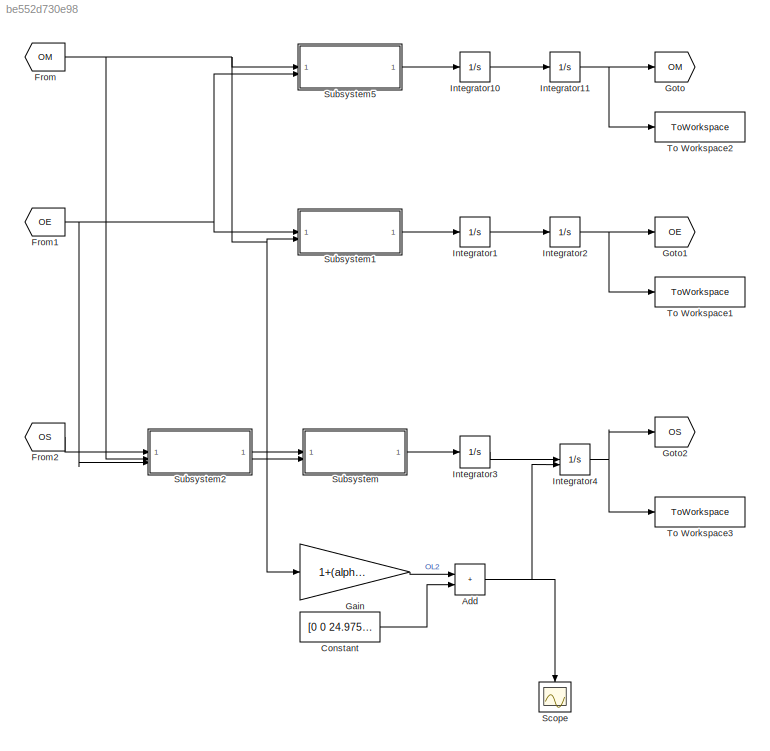
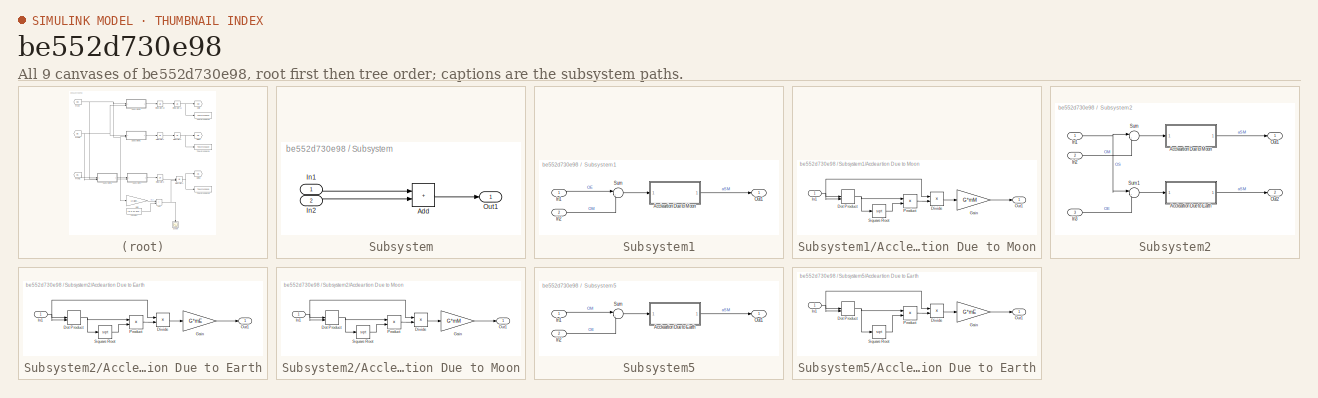
[diagram: thumbnail index - all 9 canvases of the model, root first then tree order]
MODEL slx_be552d730e98
KIND model
CONFIG AbsTol = auto
CONFIG EnableMultiTasking = off
CONFIG FixedStep = 10
CONFIG MaxStep = auto
CONFIG MinStep = auto
CONFIG RelTol = 1e-3
CONFIG SampleTimeConstraint = Unconstrained
CONFIG SolverName = FixedStepAuto
CONFIG StartTime = 0.0
CONFIG StopTime = 5000000
BLOCK [Sum] Add
  IconShape = rectangular
BLOCK [Constant] Constant
  Value = [0 0 24.975e6]
BLOCK [From] From
  GotoTag = OM
BLOCK [From] From1
  GotoTag = OE
BLOCK [From] From2
  GotoTag = OS
BLOCK [Gain] Gain
  Gain = 1+(alpha/3)^(1/3)
BLOCK [Goto] Goto
  GotoTag = OM
BLOCK [Goto] Goto1
  GotoTag = OE
BLOCK [Goto] Goto2
  GotoTag = OS
BLOCK [Integrator] Integrator1
  InitialCondition = velE
BLOCK [Integrator] Integrator10
  InitialCondition = velM
BLOCK [Integrator] Integrator11
  InitialCondition = posM
BLOCK [Integrator] Integrator2
  InitialCondition = posE
BLOCK [Integrator] Integrator3
  InitialCondition = velS
BLOCK [Integrator] Integrator4
  InitialCondition = posS
  InitialConditionSource = external
BLOCK [Scope] Scope
  Floating = off
  NameLocation = left
  NumInputPorts = 1
  ScopeSpecificationString = Simulink.scopes.TimeScopeBlockCfg('CurrentConfiguration', extmgr.ConfigurationSet(extmgr.Configuration('Core','General UI',true),extmgr.Configuration('Core','Source UI',true),extmgr.Configuration('Sources','WiredSimulink',true),extmgr.Configuration('Visuals','Time Domain',true,'SerializedDisplays',{struct('MinYLimReal','-565600906.41951','MaxYLimReal','565434810.33087','YLabelReal','','MinYLimMag'...<+1835ch>
BLOCK [SubSystem] Subsystem
BLOCK [Sum] Subsystem/Add
  IconShape = rectangular
BLOCK [Inport] Subsystem/In1
BLOCK [Inport] Subsystem/In2
  Port = 2
BLOCK [Outport] Subsystem/Out1
BLOCK [SubSystem] Subsystem1
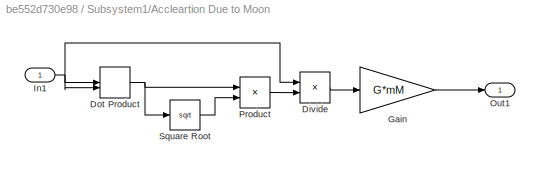
BLOCK [SubSystem] Subsystem1/Accleartion Due to Moon
BLOCK [Product] Subsystem1/Accleartion Due to Moon/Divide
  Inputs = */
BLOCK [DotProduct] Subsystem1/Accleartion Due to Moon/Dot Product
  OutDataTypeStr = Inherit: Inherit via internal rule
BLOCK [Gain] Subsystem1/Accleartion Due to Moon/Gain
  Gain = G*mM
BLOCK [Inport] Subsystem1/Accleartion Due to Moon/In1
BLOCK [Outport] Subsystem1/Accleartion Due to Moon/Out1
BLOCK [Product] Subsystem1/Accleartion Due to Moon/Product
BLOCK [Sqrt] Subsystem1/Accleartion Due to Moon/Square Root
BLOCK [Inport] Subsystem1/In1
BLOCK [Inport] Subsystem1/In2
  Port = 2
BLOCK [Outport] Subsystem1/Out1
BLOCK [Sum] Subsystem1/Sum
  Inputs = |-+
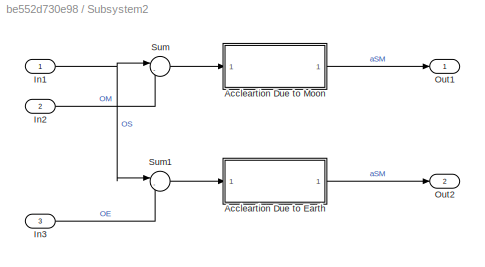
BLOCK [SubSystem] Subsystem2
BLOCK [SubSystem] Subsystem2/Accleartion Due to Earth
BLOCK [Product] Subsystem2/Accleartion Due to Earth/Divide
  Inputs = */
BLOCK [DotProduct] Subsystem2/Accleartion Due to Earth/Dot Product
  OutDataTypeStr = Inherit: Inherit via internal rule
BLOCK [Gain] Subsystem2/Accleartion Due to Earth/Gain
  Gain = G*mE
BLOCK [Inport] Subsystem2/Accleartion Due to Earth/In1
BLOCK [Outport] Subsystem2/Accleartion Due to Earth/Out1
BLOCK [Product] Subsystem2/Accleartion Due to Earth/Product
BLOCK [Sqrt] Subsystem2/Accleartion Due to Earth/Square Root
BLOCK [SubSystem] Subsystem2/Accleartion Due to Moon
BLOCK [Product] Subsystem2/Accleartion Due to Moon/Divide
  Inputs = */
BLOCK [DotProduct] Subsystem2/Accleartion Due to Moon/Dot Product
  OutDataTypeStr = Inherit: Inherit via internal rule
BLOCK [Gain] Subsystem2/Accleartion Due to Moon/Gain
  Gain = G*mM
BLOCK [Inport] Subsystem2/Accleartion Due to Moon/In1
BLOCK [Outport] Subsystem2/Accleartion Due to Moon/Out1
BLOCK [Product] Subsystem2/Accleartion Due to Moon/Product
BLOCK [Sqrt] Subsystem2/Accleartion Due to Moon/Square Root
BLOCK [Inport] Subsystem2/In1
BLOCK [Inport] Subsystem2/In2
  Port = 2
BLOCK [Inport] Subsystem2/In3
  Port = 3
BLOCK [Outport] Subsystem2/Out1
BLOCK [Outport] Subsystem2/Out2
  Port = 2
BLOCK [Sum] Subsystem2/Sum
  Inputs = |-+
BLOCK [Sum] Subsystem2/Sum1
  Inputs = |-+
BLOCK [SubSystem] Subsystem5
BLOCK [SubSystem] Subsystem5/Accleartion Due to Earth
BLOCK [Product] Subsystem5/Accleartion Due to Earth/Divide
  Inputs = */
BLOCK [DotProduct] Subsystem5/Accleartion Due to Earth/Dot Product
  OutDataTypeStr = Inherit: Inherit via internal rule
BLOCK [Gain] Subsystem5/Accleartion Due to Earth/Gain
  Gain = G*mE
BLOCK [Inport] Subsystem5/Accleartion Due to Earth/In1
BLOCK [Outport] Subsystem5/Accleartion Due to Earth/Out1
BLOCK [Product] Subsystem5/Accleartion Due to Earth/Product
BLOCK [Sqrt] Subsystem5/Accleartion Due to Earth/Square Root
BLOCK [Inport] Subsystem5/In1
BLOCK [Inport] Subsystem5/In2
  Port = 2
BLOCK [Outport] Subsystem5/Out1
BLOCK [Sum] Subsystem5/Sum
  Inputs = |-+
BLOCK [ToWorkspace] To Workspace1
  FixptAsFi = on
  MaxDataPoints = inf
  SampleTime = -1
  SaveFormat = Timeseries
  VariableName = OE
BLOCK [ToWorkspace] To Workspace2
  FixptAsFi = on
  MaxDataPoints = inf
  SampleTime = -1
  SaveFormat = Timeseries
  VariableName = OM
BLOCK [ToWorkspace] To Workspace3
  FixptAsFi = on
  MaxDataPoints = inf
  SampleTime = -1
  SaveFormat = Timeseries
  VariableName = OS
NET Add:1 -> Integrator4:2, Scope:1
LINE Constant:1 -> Add:2
NET From1:1 -> Subsystem1:1, Subsystem2:3, Subsystem5:2
LINE From2:1 -> Subsystem2:1
NET From:1 -> Gain:1, Subsystem1:2, Subsystem2:2, Subsystem5:1
LINE Gain:1 -> Add:1
LINE Integrator10:1 -> Integrator11:1
NET Integrator11:1 -> Goto:1, To Workspace2:1
LINE Integrator1:1 -> Integrator2:1
NET Integrator2:1 -> Goto1:1, To Workspace1:1
LINE Integrator3:1 -> Integrator4:1
NET Integrator4:1 -> Goto2:1, To Workspace3:1
LINE Subsystem/Add:1 -> Subsystem/Out1:1
LINE Subsystem/In1:1 -> Subsystem/Add:1
LINE Subsystem/In2:1 -> Subsystem/Add:2
LINE Subsystem1/Accleartion Due to Moon/Divide:1 -> Subsystem1/Accleartion Due to Moon/Gain:1
NET Subsystem1/Accleartion Due to Moon/Dot Product:1 -> Subsystem1/Accleartion Due to Moon/Product:1, Subsystem1/Accleartion Due to Moon/Square Root:1
LINE Subsystem1/Accleartion Due to Moon/Gain:1 -> Subsystem1/Accleartion Due to Moon/Out1:1
NET Subsystem1/Accleartion Due to Moon/In1:1 -> Subsystem1/Accleartion Due to Moon/Divide:1, Subsystem1/Accleartion Due to Moon/Dot Product:1, Subsystem1/Accleartion Due to Moon/Dot Product:2
LINE Subsystem1/Accleartion Due to Moon/Product:1 -> Subsystem1/Accleartion Due to Moon/Divide:2
LINE Subsystem1/Accleartion Due to Moon/Square Root:1 -> Subsystem1/Accleartion Due to Moon/Product:2
LINE Subsystem1/Accleartion Due to Moon:1 -> Subsystem1/Out1:1
LINE Subsystem1/In1:1 -> Subsystem1/Sum:1
LINE Subsystem1/In2:1 -> Subsystem1/Sum:2
LINE Subsystem1/Sum:1 -> Subsystem1/Accleartion Due to Moon:1
LINE Subsystem1:1 -> Integrator1:1
LINE Subsystem2/Accleartion Due to Earth/Divide:1 -> Subsystem2/Accleartion Due to Earth/Gain:1
NET Subsystem2/Accleartion Due to Earth/Dot Product:1 -> Subsystem2/Accleartion Due to Earth/Product:1, Subsystem2/Accleartion Due to Earth/Square Root:1
LINE Subsystem2/Accleartion Due to Earth/Gain:1 -> Subsystem2/Accleartion Due to Earth/Out1:1
NET Subsystem2/Accleartion Due to Earth/In1:1 -> Subsystem2/Accleartion Due to Earth/Divide:1, Subsystem2/Accleartion Due to Earth/Dot Product:1, Subsystem2/Accleartion Due to Earth/Dot Product:2
LINE Subsystem2/Accleartion Due to Earth/Product:1 -> Subsystem2/Accleartion Due to Earth/Divide:2
LINE Subsystem2/Accleartion Due to Earth/Square Root:1 -> Subsystem2/Accleartion Due to Earth/Product:2
LINE Subsystem2/Accleartion Due to Earth:1 -> Subsystem2/Out2:1
LINE Subsystem2/Accleartion Due to Moon/Divide:1 -> Subsystem2/Accleartion Due to Moon/Gain:1
NET Subsystem2/Accleartion Due to Moon/Dot Product:1 -> Subsystem2/Accleartion Due to Moon/Product:1, Subsystem2/Accleartion Due to Moon/Square Root:1
LINE Subsystem2/Accleartion Due to Moon/Gain:1 -> Subsystem2/Accleartion Due to Moon/Out1:1
NET Subsystem2/Accleartion Due to Moon/In1:1 -> Subsystem2/Accleartion Due to Moon/Divide:1, Subsystem2/Accleartion Due to Moon/Dot Product:1, Subsystem2/Accleartion Due to Moon/Dot Product:2
LINE Subsystem2/Accleartion Due to Moon/Product:1 -> Subsystem2/Accleartion Due to Moon/Divide:2
LINE Subsystem2/Accleartion Due to Moon/Square Root:1 -> Subsystem2/Accleartion Due to Moon/Product:2
LINE Subsystem2/Accleartion Due to Moon:1 -> Subsystem2/Out1:1
NET Subsystem2/In1:1 -> Subsystem2/Sum1:1, Subsystem2/Sum:1
LINE Subsystem2/In2:1 -> Subsystem2/Sum:2
LINE Subsystem2/In3:1 -> Subsystem2/Sum1:2
LINE Subsystem2/Sum1:1 -> Subsystem2/Accleartion Due to Earth:1
LINE Subsystem2/Sum:1 -> Subsystem2/Accleartion Due to Moon:1
LINE Subsystem2:1 -> Subsystem:1
LINE Subsystem2:2 -> Subsystem:2
LINE Subsystem5/Accleartion Due to Earth/Divide:1 -> Subsystem5/Accleartion Due to Earth/Gain:1
NET Subsystem5/Accleartion Due to Earth/Dot Product:1 -> Subsystem5/Accleartion Due to Earth/Product:1, Subsystem5/Accleartion Due to Earth/Square Root:1
LINE Subsystem5/Accleartion Due to Earth/Gain:1 -> Subsystem5/Accleartion Due to Earth/Out1:1
NET Subsystem5/Accleartion Due to Earth/In1:1 -> Subsystem5/Accleartion Due to Earth/Divide:1, Subsystem5/Accleartion Due to Earth/Dot Product:1, Subsystem5/Accleartion Due to Earth/Dot Product:2
LINE Subsystem5/Accleartion Due to Earth/Product:1 -> Subsystem5/Accleartion Due to Earth/Divide:2
LINE Subsystem5/Accleartion Due to Earth/Square Root:1 -> Subsystem5/Accleartion Due to Earth/Product:2
LINE Subsystem5/Accleartion Due to Earth:1 -> Subsystem5/Out1:1
LINE Subsystem5/In1:1 -> Subsystem5/Sum:1
LINE Subsystem5/In2:1 -> Subsystem5/Sum:2
LINE Subsystem5/Sum:1 -> Subsystem5/Accleartion Due to Earth:1
LINE Subsystem5:1 -> Integrator10:1
LINE Subsystem:1 -> Integrator3:1
note: NET lines group one-source signal fan-out (src -> all destinations, sorted); 1:1 wires keep LINE
